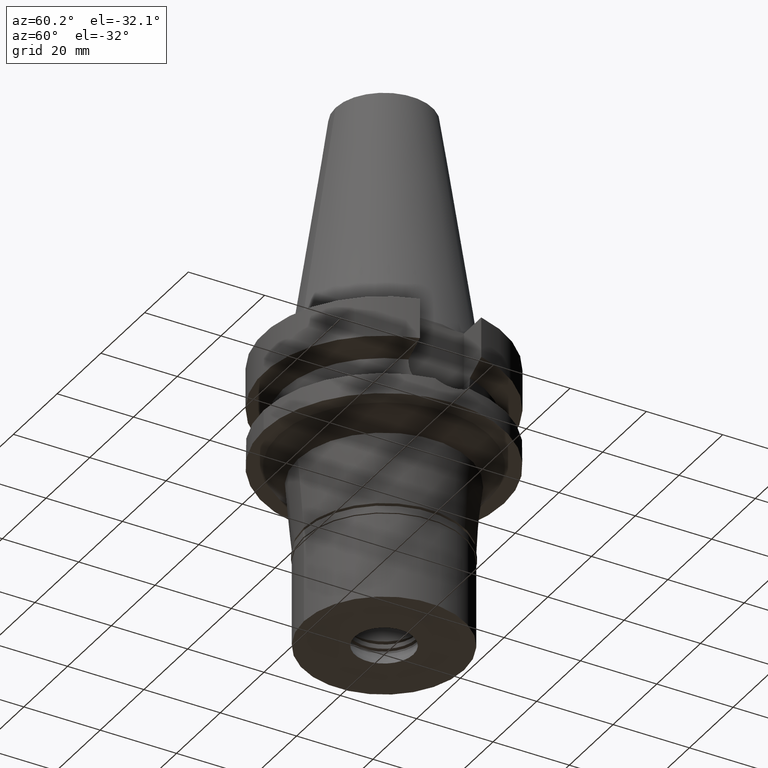
[diagram: clean part render]
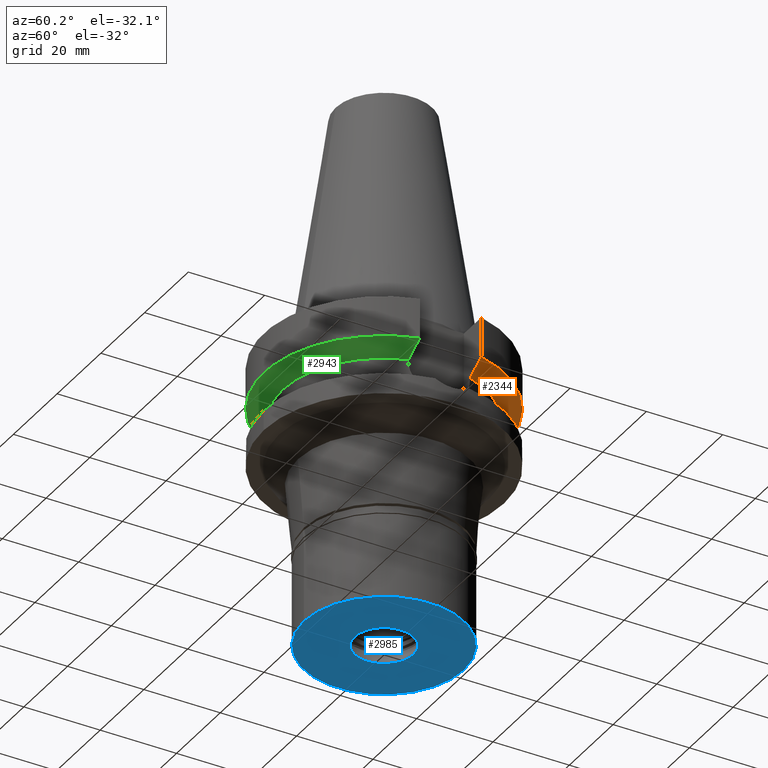
[diagram: same view with three faces highlighted in distinct colors, each labeled with its STEP entity id]
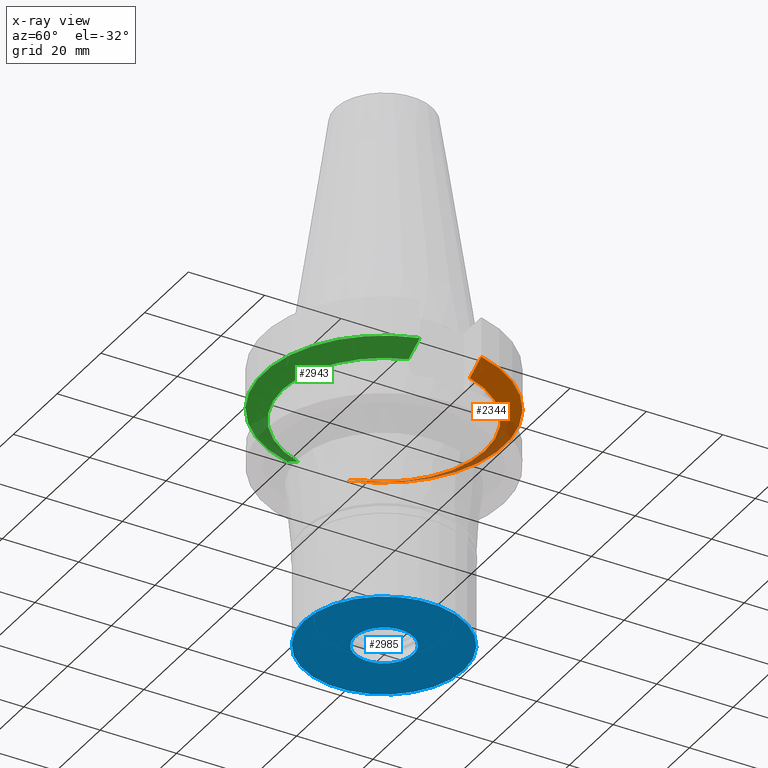
[diagram: x-ray of the same camera — body ghosted, the three highlighted faces saturated]
A machine part, auxiliary view with three faces highlighted in distinct colors.
The next image is the same camera in x-ray (body ghosted, the three faces saturated) — at least one of them is partly hidden behind the body in this view.
Their STEP definitions:

[orange] entity #2344 — the highlighted conical surface has half-angle 60 deg.
#328 = CARTESIAN_POINT ( 'NONE',  ( -28.57295838950381039, 8.050008305270038633, -12.61547498097793074 ) ) ;
#330 = CARTESIAN_POINT ( 'NONE',  ( 25.24772413709000318, 8.049995397337999847, -14.45229216897000057 ) ) ;
#381 = CARTESIAN_POINT ( 'NONE',  ( -30.45402162443999572, 8.050004155159998120, -11.56546822476000003 ) ) ;
#418 = ORIENTED_EDGE ( 'NONE', *, *, #549, .T. ) ;
#439 = VERTEX_POINT ( 'NONE', #381 ) ;
#515 = EDGE_LOOP ( 'NONE', ( #3013, #1807, #1887, #418 ) ) ;
#549 = EDGE_CURVE ( 'NONE', #2955, #439, #1119, .T. ) ;
#594 = VERTEX_POINT ( 'NONE', #823 ) ;
#611 = CARTESIAN_POINT ( 'NONE',  ( -25.24772216780000278, 8.050001573764999918, -14.45224497365000005 ) ) ;
#655 = DIRECTION ( 'NONE',  ( 0.0000000000000000000, 1.000000000000000000, 0.0000000000000000000 ) ) ;
#823 = CARTESIAN_POINT ( 'NONE',  ( 25.24772413709000318, 8.049995397337999847, -14.45229216897000057 ) ) ;
#841 = AXIS2_PLACEMENT_3D ( 'NONE', #2744, #1155, #2534 ) ;
#893 = AXIS2_PLACEMENT_3D ( 'NONE', #1825, #2984, #655 ) ;
#965 = CARTESIAN_POINT ( 'NONE',  ( 30.45402291547999951, 8.049999271017000524, -11.56551221846000033 ) ) ;
#1081 = VERTEX_POINT ( 'NONE', #965 ) ;
#1088 = FACE_OUTER_BOUND ( 'NONE', #515, .T. ) ;
#1099 = CARTESIAN_POINT ( 'NONE',  ( -26.83758113786151611, 8.050003150930344020, -13.57772754653924352 ) ) ;
#1107 = DIRECTION ( 'NONE',  ( 0.0000000000000000000, 1.000000000000000000, 0.0000000000000000000 ) ) ;
#1119 = B_SPLINE_CURVE_WITH_KNOTS ( 'NONE', 3,
 ( #611, #1099, #328, #2157 ),
 .UNSPECIFIED., .F., .F.,
 ( 4, 4 ),
 ( 0.0000000000000000000, 1.000000000000000000 ),
 .UNSPECIFIED. ) ;
#1155 = DIRECTION ( 'NONE',  ( 0.0000000000000000000, 0.0000000000000000000, -1.000000000000000000 ) ) ;
#1329 = DIRECTION ( 'NONE',  ( 0.0000000000000000000, 0.0000000000000000000, 1.000000000000000000 ) ) ;
#1541 = B_SPLINE_CURVE_WITH_KNOTS ( 'NONE', 3,
 ( #2236, #1992, #2203, #330 ),
 .UNSPECIFIED., .F., .F.,
 ( 4, 4 ),
 ( 0.0000000000000000000, 1.000000000000000000 ),
 .UNSPECIFIED. ) ;
#1807 = ORIENTED_EDGE ( 'NONE', *, *, #2816, .T. ) ;
#1825 = CARTESIAN_POINT ( 'NONE',  ( 0.0000000000000000000, 1.065333950388000029E-14, -11.56550565266999975 ) ) ;
#1887 = ORIENTED_EDGE ( 'NONE', *, *, #2467, .F. ) ;
#1922 = EDGE_CURVE ( 'NONE', #1081, #439, #2219, .T. ) ;
#1992 = CARTESIAN_POINT ( 'NONE',  ( 28.57292309523784013, 8.049998542984830863, -12.61549616638480664 ) ) ;
#2024 = CARTESIAN_POINT ( 'NONE',  ( 0.0000000000000000000, 1.065333950388000029E-14, -13.00888132564000088 ) ) ;
#2157 = CARTESIAN_POINT ( 'NONE',  ( -30.45402162443999572, 8.050004155159998120, -11.56546822476000003 ) ) ;
#2203 = CARTESIAN_POINT ( 'NONE',  ( 26.83754595752643013, 8.049990784480840489, -13.57774899874855379 ) ) ;
#2219 = CIRCLE ( 'NONE', #893, 31.50000000000000000 ) ;
#2221 = CONICAL_SURFACE ( 'NONE', #2477, 29.00000000000000000, 1.047197551196400456 ) ;
#2236 = CARTESIAN_POINT ( 'NONE',  ( 30.45402291547999951, 8.049999271017000524, -11.56551221846000033 ) ) ;
#2267 = CARTESIAN_POINT ( 'NONE',  ( -25.24772216780000278, 8.050001573764999918, -14.45224497365000005 ) ) ;
#2344 = ADVANCED_FACE ( 'NONE', ( #1088 ), #2221, .T. ) ;
#2467 = EDGE_CURVE ( 'NONE', #2955, #594, #2976, .T. ) ;
#2477 = AXIS2_PLACEMENT_3D ( 'NONE', #2024, #1329, #1107 ) ;
#2534 = DIRECTION ( 'NONE',  ( -0.9527442516822307583, 0.3037735849057093818, 0.0000000000000000000 ) ) ;
#2744 = CARTESIAN_POINT ( 'NONE',  ( 0.0000000000000000000, 1.065333950388000029E-14, -14.45225699861000024 ) ) ;
#2816 = EDGE_CURVE ( 'NONE', #1081, #594, #1541, .T. ) ;
#2955 = VERTEX_POINT ( 'NONE', #2267 ) ;
#2976 = CIRCLE ( 'NONE', #841, 26.50000000000000711 ) ;
#2984 = DIRECTION ( 'NONE',  ( 0.0000000000000000000, 0.0000000000000000000, 1.000000000000000000 ) ) ;
#3013 = ORIENTED_EDGE ( 'NONE', *, *, #1922, .F. ) ;

[blue] entity #2985 — the highlighted planar face has unit normal (0, 0, -1).
#146 = DIRECTION ( 'NONE',  ( 0.0000000000000000000, 0.0000000000000000000, 1.000000000000000000 ) ) ;
#147 = DIRECTION ( 'NONE',  ( 0.0000000000000000000, 0.0000000000000000000, -1.000000000000000000 ) ) ;
#202 = CARTESIAN_POINT ( 'NONE',  ( 0.0000000000000000000, 0.0000000000000000000, -24.29999999999999716 ) ) ;
#231 = CARTESIAN_POINT ( 'NONE',  ( 0.0000000000000000000, 0.0000000000000000000, -24.29999999999999716 ) ) ;
#378 = AXIS2_PLACEMENT_3D ( 'NONE', #425, #146, #2993 ) ;
#412 = DIRECTION ( 'NONE',  ( 0.0000000000000000000, -1.000000000000000000, 0.0000000000000000000 ) ) ;
#425 = CARTESIAN_POINT ( 'NONE',  ( 0.0000000000000000000, 0.0000000000000000000, -24.29999999999999716 ) ) ;
#431 = CARTESIAN_POINT ( 'NONE',  ( 0.0000000000000000000, 21.00000000000000000, -24.29999999999999716 ) ) ;
#551 = DIRECTION ( 'NONE',  ( 0.0000000000000000000, -1.000000000000000000, 0.0000000000000000000 ) ) ;
#617 = VERTEX_POINT ( 'NONE', #1763 ) ;
#631 = CIRCLE ( 'NONE', #378, 21.00000000000000000 ) ;
#679 = DIRECTION ( 'NONE',  ( 0.0000000000000000000, 1.000000000000000000, 0.0000000000000000000 ) ) ;
#786 = CARTESIAN_POINT ( 'NONE',  ( 0.0000000000000000000, 0.0000000000000000000, -24.29999999999999716 ) ) ;
#797 = ORIENTED_EDGE ( 'NONE', *, *, #901, .F. ) ;
#899 = VERTEX_POINT ( 'NONE', #431 ) ;
#901 = EDGE_CURVE ( 'NONE', #617, #2327, #3058, .T. ) ;
#922 = EDGE_CURVE ( 'NONE', #1139, #899, #1921, .T. ) ;
#1139 = VERTEX_POINT ( 'NONE', #2971 ) ;
#1154 = DIRECTION ( 'NONE',  ( 0.0000000000000000000, 0.0000000000000000000, -1.000000000000000000 ) ) ;
#1198 = ORIENTED_EDGE ( 'NONE', *, *, #922, .F. ) ;
#1287 = AXIS2_PLACEMENT_3D ( 'NONE', #786, #1692, #551 ) ;
#1372 = EDGE_CURVE ( 'NONE', #899, #1139, #631, .T. ) ;
#1690 = ORIENTED_EDGE ( 'NONE', *, *, #1372, .F. ) ;
#1692 = DIRECTION ( 'NONE',  ( 0.0000000000000000000, 0.0000000000000000000, -1.000000000000000000 ) ) ;
#1763 = CARTESIAN_POINT ( 'NONE',  ( 0.0000000000000000000, 7.700000000000000178, -24.29999999999999716 ) ) ;
#1805 = CARTESIAN_POINT ( 'NONE',  ( 0.0000000000000000000, -7.700000000000000178, -24.29999999999999716 ) ) ;
#1830 = AXIS2_PLACEMENT_3D ( 'NONE', #2792, #147, #412 ) ;
#1921 = CIRCLE ( 'NONE', #2260, 21.00000000000000000 ) ;
#2005 = ORIENTED_EDGE ( 'NONE', *, *, #2776, .F. ) ;
#2015 = EDGE_LOOP ( 'NONE', ( #1690, #1198 ) ) ;
#2020 = PLANE ( 'NONE',  #1830 ) ;
#2052 = FACE_BOUND ( 'NONE', #2837, .T. ) ;
#2067 = FACE_OUTER_BOUND ( 'NONE', #2015, .T. ) ;
#2260 = AXIS2_PLACEMENT_3D ( 'NONE', #231, #2884, #2417 ) ;
#2327 = VERTEX_POINT ( 'NONE', #1805 ) ;
#2417 = DIRECTION ( 'NONE',  ( 0.0000000000000000000, -1.000000000000000000, 0.0000000000000000000 ) ) ;
#2569 = AXIS2_PLACEMENT_3D ( 'NONE', #202, #1154, #679 ) ;
#2637 = CIRCLE ( 'NONE', #1287, 7.700000000000000178 ) ;
#2776 = EDGE_CURVE ( 'NONE', #2327, #617, #2637, .T. ) ;
#2792 = CARTESIAN_POINT ( 'NONE',  ( 0.0000000000000000000, 0.0000000000000000000, -24.29999999999999716 ) ) ;
#2837 = EDGE_LOOP ( 'NONE', ( #797, #2005 ) ) ;
#2884 = DIRECTION ( 'NONE',  ( 0.0000000000000000000, 0.0000000000000000000, 1.000000000000000000 ) ) ;
#2971 = CARTESIAN_POINT ( 'NONE',  ( 0.0000000000000000000, -21.00000000000000000, -24.29999999999999716 ) ) ;
#2985 = ADVANCED_FACE ( 'NONE', ( #2067, #2052 ), #2020, .T. ) ;
#2993 = DIRECTION ( 'NONE',  ( 0.0000000000000000000, 1.000000000000000000, 0.0000000000000000000 ) ) ;
#3058 = CIRCLE ( 'NONE', #2569, 7.700000000000000178 ) ;

[green] entity #2943 — the highlighted conical surface has half-angle 60 deg.
#14 = EDGE_CURVE ( 'NONE', #1624, #229, #2856, .T. ) ;
#18 = CARTESIAN_POINT ( 'NONE',  ( 26.83757685314927599, -8.050003145689322182, -13.57772990430894922 ) ) ;
#69 = CARTESIAN_POINT ( 'NONE',  ( 0.0000000000000000000, 1.065333950388000029E-14, -14.45225699861000024 ) ) ;
#93 = CARTESIAN_POINT ( 'NONE',  ( -25.24772413719000141, -8.049995397041000089, -14.45229217123999987 ) ) ;
#227 = CARTESIAN_POINT ( 'NONE',  ( 28.57294907633519898, -8.050008309563228437, -12.61548014472692536 ) ) ;
#229 = VERTEX_POINT ( 'NONE', #93 ) ;
#498 = AXIS2_PLACEMENT_3D ( 'NONE', #2557, #3021, #2252 ) ;
#547 = ORIENTED_EDGE ( 'NONE', *, *, #1520, .T. ) ;
#590 = CARTESIAN_POINT ( 'NONE',  ( 25.24772266958000344, -8.050000000000000711, -14.45225699861000024 ) ) ;
#607 = VERTEX_POINT ( 'NONE', #590 ) ;
#804 = DIRECTION ( 'NONE',  ( 0.0000000000000000000, 0.0000000000000000000, -1.000000000000000000 ) ) ;
#933 = ORIENTED_EDGE ( 'NONE', *, *, #2196, .F. ) ;
#1003 = CARTESIAN_POINT ( 'NONE',  ( -30.45402291541999773, -8.049999271247999744, -11.56551221638000015 ) ) ;
#1046 = CIRCLE ( 'NONE', #2784, 31.50000000000000000 ) ;
#1117 = CARTESIAN_POINT ( 'NONE',  ( 30.45402272279000044, -8.049999999999000622, -11.56550565266999975 ) ) ;
#1176 = ORIENTED_EDGE ( 'NONE', *, *, #14, .T. ) ;
#1387 = CARTESIAN_POINT ( 'NONE',  ( -26.83754594999623322, -8.049990783889482415, -13.57774900299108722 ) ) ;
#1415 = VERTEX_POINT ( 'NONE', #1117 ) ;
#1520 = EDGE_CURVE ( 'NONE', #607, #1415, #2755, .T. ) ;
#1624 = VERTEX_POINT ( 'NONE', #1003 ) ;
#1631 = CIRCLE ( 'NONE', #2581, 26.50000000000000711 ) ;
#1655 = ORIENTED_EDGE ( 'NONE', *, *, #2919, .F. ) ;
#1761 = FACE_OUTER_BOUND ( 'NONE', #2091, .T. ) ;
#2091 = EDGE_LOOP ( 'NONE', ( #1176, #933, #547, #1655 ) ) ;
#2107 = CARTESIAN_POINT ( 'NONE',  ( -25.24772413719000141, -8.049995397041000089, -14.45229217123999987 ) ) ;
#2158 = CARTESIAN_POINT ( 'NONE',  ( 25.24772266958000344, -8.050000000000000711, -14.45225699861000024 ) ) ;
#2177 = CONICAL_SURFACE ( 'NONE', #498, 29.00000000000000000, 1.047197551196400456 ) ;
#2196 = EDGE_CURVE ( 'NONE', #607, #229, #1631, .T. ) ;
#2252 = DIRECTION ( 'NONE',  ( 0.0000000000000000000, 1.000000000000000000, 0.0000000000000000000 ) ) ;
#2289 = CARTESIAN_POINT ( 'NONE',  ( 0.0000000000000000000, 1.065333950388000029E-14, -11.56550565266999975 ) ) ;
#2557 = CARTESIAN_POINT ( 'NONE',  ( 0.0000000000000000000, 1.065333950388000029E-14, -13.00888132564000088 ) ) ;
#2581 = AXIS2_PLACEMENT_3D ( 'NONE', #69, #804, #2726 ) ;
#2583 = CARTESIAN_POINT ( 'NONE',  ( -28.57292308816028026, -8.049998543444496946, -12.61549617026541981 ) ) ;
#2650 = CARTESIAN_POINT ( 'NONE',  ( 30.45402272279000044, -8.049999999999000622, -11.56550565266999975 ) ) ;
#2721 = DIRECTION ( 'NONE',  ( 0.0000000000000000000, 0.0000000000000000000, 1.000000000000000000 ) ) ;
#2726 = DIRECTION ( 'NONE',  ( 0.9527442516822307583, -0.3037735849057093818, 0.0000000000000000000 ) ) ;
#2755 = B_SPLINE_CURVE_WITH_KNOTS ( 'NONE', 3,
 ( #2158, #18, #227, #2650 ),
 .UNSPECIFIED., .F., .F.,
 ( 4, 4 ),
 ( 0.0000000000000000000, 1.000000000000000000 ),
 .UNSPECIFIED. ) ;
#2784 = AXIS2_PLACEMENT_3D ( 'NONE', #2289, #2721, #2972 ) ;
#2829 = CARTESIAN_POINT ( 'NONE',  ( -30.45402291541999773, -8.049999271247999744, -11.56551221638000015 ) ) ;
#2856 = B_SPLINE_CURVE_WITH_KNOTS ( 'NONE', 3,
 ( #2829, #2583, #1387, #2107 ),
 .UNSPECIFIED., .F., .F.,
 ( 4, 4 ),
 ( 0.0000000000000000000, 1.000000000000000000 ),
 .UNSPECIFIED. ) ;
#2919 = EDGE_CURVE ( 'NONE', #1624, #1415, #1046, .T. ) ;
#2943 = ADVANCED_FACE ( 'NONE', ( #1761 ), #2177, .T. ) ;
#2972 = DIRECTION ( 'NONE',  ( 0.0000000000000000000, -1.000000000000000000, 0.0000000000000000000 ) ) ;
#3021 = DIRECTION ( 'NONE',  ( 0.0000000000000000000, 0.0000000000000000000, 1.000000000000000000 ) ) ;